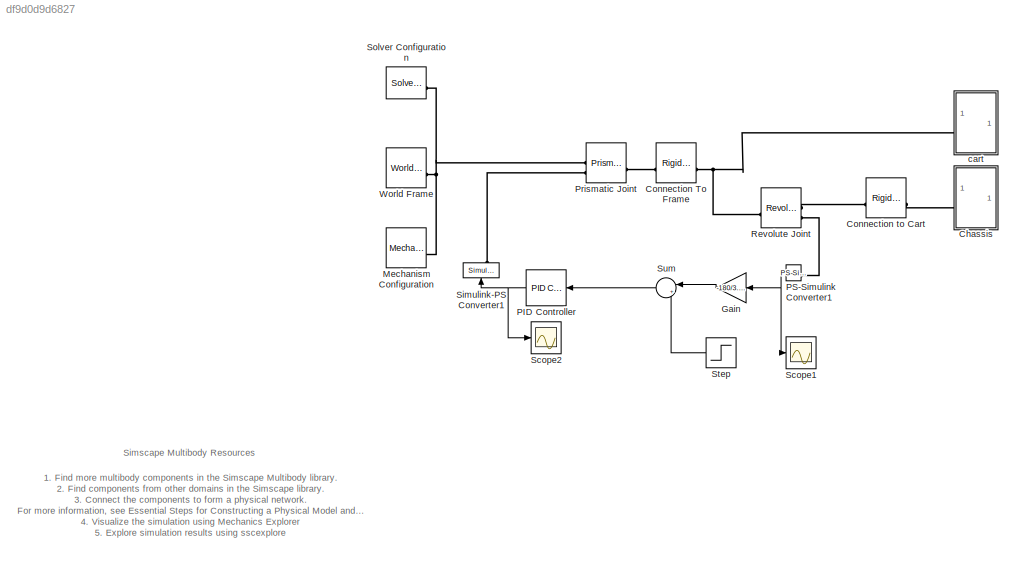
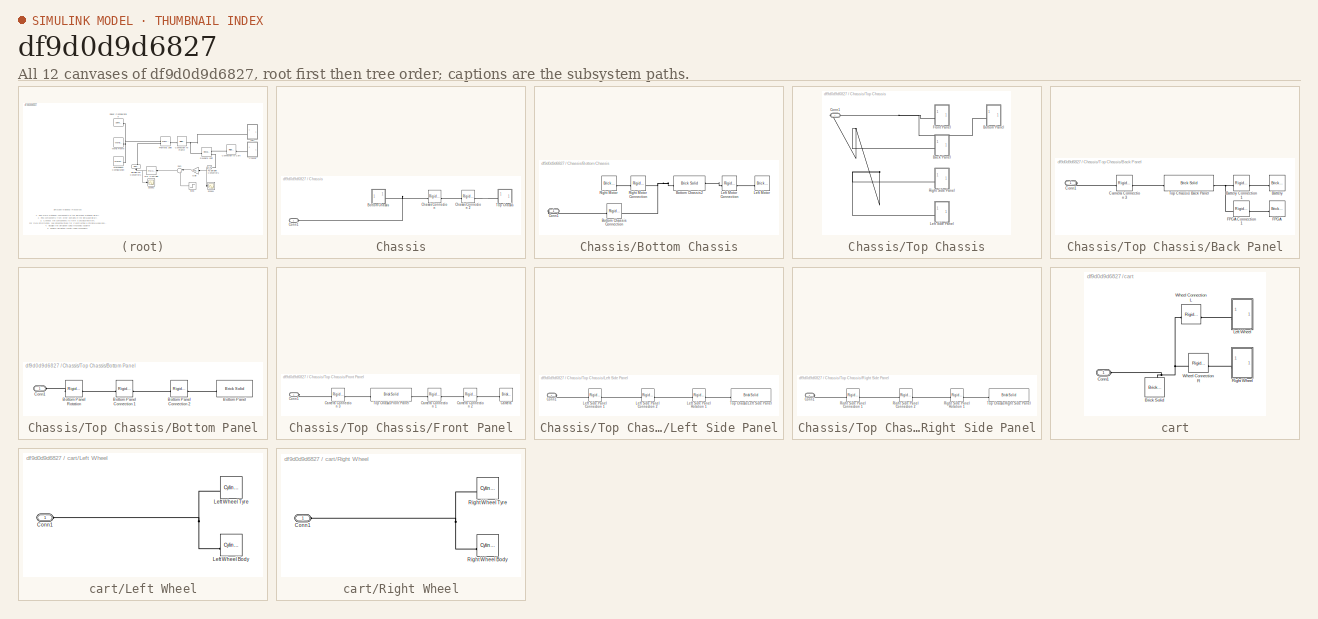
[diagram: thumbnail index - all 12 canvases of the model, root first then tree order]
MODEL slx_df9d0d9d6827
KIND model
CONFIG AbsTol = 1e-3
CONFIG EnableMultiTasking = on
CONFIG FixedStep = auto
CONFIG MaxStep = auto
CONFIG MinStep = auto
CONFIG RelTol = 1e-3
CONFIG SampleTimeConstraint = Unconstrained
CONFIG SolverName = VariableStepAuto
CONFIG StartTime = 0.0
CONFIG StopTime = 10.0
BLOCK [SubSystem] Chassis
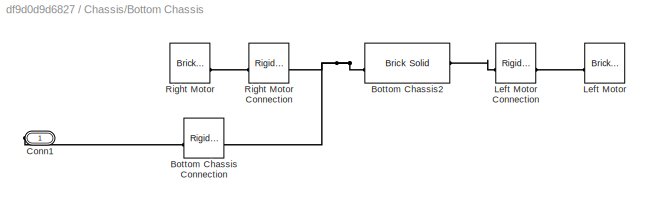
BLOCK [SubSystem] Chassis/Bottom Chassis
BLOCK [Reference] Chassis/Bottom Chassis/Bottom Chassis Connection  REF=sm_lib/Frames and
Transforms/Rigid
Transform
  SourceBlock = sm_lib/Frames and\nTransforms/Rigid\nTransform
  SourceType = Rigid\nTransform
BLOCK [Reference] Chassis/Bottom Chassis/Bottom Chassis2  REF=sm_lib/Body Elements/Brick Solid
  NameLocation = top
  SourceBlock = sm_lib/Body Elements/Brick Solid
  SourceType = Brick Solid
BLOCK [PMIOPort] Chassis/Bottom Chassis/Conn1
  NameLocation = top
  Side = Right
BLOCK [Reference] Chassis/Bottom Chassis/Left Motor  REF=sm_lib/Body Elements/Brick Solid
  SourceBlock = sm_lib/Body Elements/Brick Solid
  SourceType = Brick Solid
BLOCK [Reference] Chassis/Bottom Chassis/Left Motor Connection  REF=sm_lib/Frames and
Transforms/Rigid
Transform
  SourceBlock = sm_lib/Frames and\nTransforms/Rigid\nTransform
  SourceType = Rigid\nTransform
BLOCK [Reference] Chassis/Bottom Chassis/Right Motor  REF=sm_lib/Body Elements/Brick Solid
  NameLocation = top
  SourceBlock = sm_lib/Body Elements/Brick Solid
  SourceType = Brick Solid
BLOCK [Reference] Chassis/Bottom Chassis/Right Motor Connection  REF=sm_lib/Frames and
Transforms/Rigid
Transform
  SourceBlock = sm_lib/Frames and\nTransforms/Rigid\nTransform
  SourceType = Rigid\nTransform
BLOCK [Reference] Chassis/Chassis Connection  REF=sm_lib/Frames and
Transforms/Rigid
Transform
  SourceBlock = sm_lib/Frames and\nTransforms/Rigid\nTransform
  SourceType = Rigid\nTransform
BLOCK [Reference] Chassis/Chassis Connection 2  REF=sm_lib/Frames and
Transforms/Rigid
Transform
  SourceBlock = sm_lib/Frames and\nTransforms/Rigid\nTransform
  SourceType = Rigid\nTransform
BLOCK [PMIOPort] Chassis/Conn1
  Side = Left
BLOCK [SubSystem] Chassis/Top Chassis
  NameLocation = top
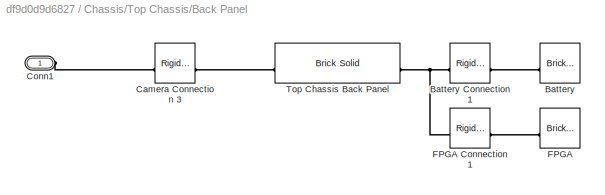
BLOCK [SubSystem] Chassis/Top Chassis/Back Panel
BLOCK [Reference] Chassis/Top Chassis/Back Panel/Battery  REF=sm_lib/Body Elements/Brick Solid
  NameLocation = top
  SourceBlock = sm_lib/Body Elements/Brick Solid
  SourceType = Brick Solid
BLOCK [Reference] Chassis/Top Chassis/Back Panel/Battery Connection 1  REF=sm_lib/Frames and
Transforms/Rigid
Transform
  SourceBlock = sm_lib/Frames and\nTransforms/Rigid\nTransform
  SourceType = Rigid\nTransform
BLOCK [Reference] Chassis/Top Chassis/Back Panel/Camera Connection 3  REF=sm_lib/Frames and
Transforms/Rigid
Transform
  SourceBlock = sm_lib/Frames and\nTransforms/Rigid\nTransform
  SourceType = Rigid\nTransform
BLOCK [PMIOPort] Chassis/Top Chassis/Back Panel/Conn1
  Side = Left
BLOCK [Reference] Chassis/Top Chassis/Back Panel/FPGA  REF=sm_lib/Body Elements/Brick Solid
  NameLocation = top
  SourceBlock = sm_lib/Body Elements/Brick Solid
  SourceType = Brick Solid
BLOCK [Reference] Chassis/Top Chassis/Back Panel/FPGA Connection 1  REF=sm_lib/Frames and
Transforms/Rigid
Transform
  SourceBlock = sm_lib/Frames and\nTransforms/Rigid\nTransform
  SourceType = Rigid\nTransform
BLOCK [Reference] Chassis/Top Chassis/Back Panel/Top Chassis Back Panel  REF=sm_lib/Body Elements/Brick Solid
  SourceBlock = sm_lib/Body Elements/Brick Solid
  SourceType = Brick Solid
BLOCK [SubSystem] Chassis/Top Chassis/Bottom Panel
BLOCK [Reference] Chassis/Top Chassis/Bottom Panel/Bottom Panel  REF=sm_lib/Body Elements/Brick Solid
  NameLocation = top
  SourceBlock = sm_lib/Body Elements/Brick Solid
  SourceType = Brick Solid
BLOCK [Reference] Chassis/Top Chassis/Bottom Panel/Bottom Panel Connection 1  REF=sm_lib/Frames and
Transforms/Rigid
Transform
  SourceBlock = sm_lib/Frames and\nTransforms/Rigid\nTransform
  SourceType = Rigid\nTransform
BLOCK [Reference] Chassis/Top Chassis/Bottom Panel/Bottom Panel Connection 2  REF=sm_lib/Frames and
Transforms/Rigid
Transform
  SourceBlock = sm_lib/Frames and\nTransforms/Rigid\nTransform
  SourceType = Rigid\nTransform
BLOCK [Reference] Chassis/Top Chassis/Bottom Panel/Bottom Panel Rotation  REF=sm_lib/Frames and
Transforms/Rigid
Transform
  SourceBlock = sm_lib/Frames and\nTransforms/Rigid\nTransform
  SourceType = Rigid\nTransform
BLOCK [PMIOPort] Chassis/Top Chassis/Bottom Panel/Conn1
  Side = Left
BLOCK [PMIOPort] Chassis/Top Chassis/Conn1
  Side = Right
BLOCK [SubSystem] Chassis/Top Chassis/Front Panel
BLOCK [Reference] Chassis/Top Chassis/Front Panel/Camera  REF=sm_lib/Body Elements/Brick Solid
  NameLocation = top
  SourceBlock = sm_lib/Body Elements/Brick Solid
  SourceType = Brick Solid
BLOCK [Reference] Chassis/Top Chassis/Front Panel/Camera Connection 1  REF=sm_lib/Frames and
Transforms/Rigid
Transform
  SourceBlock = sm_lib/Frames and\nTransforms/Rigid\nTransform
  SourceType = Rigid\nTransform
BLOCK [Reference] Chassis/Top Chassis/Front Panel/Camera Connection 2  REF=sm_lib/Frames and
Transforms/Rigid
Transform
  SourceBlock = sm_lib/Frames and\nTransforms/Rigid\nTransform
  SourceType = Rigid\nTransform
BLOCK [Reference] Chassis/Top Chassis/Front Panel/Camera Connection 3  REF=sm_lib/Frames and
Transforms/Rigid
Transform
  SourceBlock = sm_lib/Frames and\nTransforms/Rigid\nTransform
  SourceType = Rigid\nTransform
BLOCK [PMIOPort] Chassis/Top Chassis/Front Panel/Conn1
  Side = Left
BLOCK [Reference] Chassis/Top Chassis/Front Panel/Top Chassis Front Panel  REF=sm_lib/Body Elements/Brick Solid
  SourceBlock = sm_lib/Body Elements/Brick Solid
  SourceType = Brick Solid
BLOCK [SubSystem] Chassis/Top Chassis/Left Side Panel
BLOCK [PMIOPort] Chassis/Top Chassis/Left Side Panel/Conn1
  Side = Left
BLOCK [Reference] Chassis/Top Chassis/Left Side Panel/Left Side Panel Connection 1  REF=sm_lib/Frames and
Transforms/Rigid
Transform
  SourceBlock = sm_lib/Frames and\nTransforms/Rigid\nTransform
  SourceType = Rigid\nTransform
BLOCK [Reference] Chassis/Top Chassis/Left Side Panel/Left Side Panel Connection 2  REF=sm_lib/Frames and
Transforms/Rigid
Transform
  SourceBlock = sm_lib/Frames and\nTransforms/Rigid\nTransform
  SourceType = Rigid\nTransform
BLOCK [Reference] Chassis/Top Chassis/Left Side Panel/Left Side Panel Rotation 1  REF=sm_lib/Frames and
Transforms/Rigid
Transform
  SourceBlock = sm_lib/Frames and\nTransforms/Rigid\nTransform
  SourceType = Rigid\nTransform
BLOCK [Reference] Chassis/Top Chassis/Left Side Panel/Top Chassis Left Side Panel  REF=sm_lib/Body Elements/Brick Solid
  SourceBlock = sm_lib/Body Elements/Brick Solid
  SourceType = Brick Solid
BLOCK [SubSystem] Chassis/Top Chassis/Right Side Panel
BLOCK [PMIOPort] Chassis/Top Chassis/Right Side Panel/Conn1
  Side = Left
BLOCK [Reference] Chassis/Top Chassis/Right Side Panel/Right Side Panel Connection 1  REF=sm_lib/Frames and
Transforms/Rigid
Transform
  SourceBlock = sm_lib/Frames and\nTransforms/Rigid\nTransform
  SourceType = Rigid\nTransform
BLOCK [Reference] Chassis/Top Chassis/Right Side Panel/Right Side Panel Connection 2  REF=sm_lib/Frames and
Transforms/Rigid
Transform
  SourceBlock = sm_lib/Frames and\nTransforms/Rigid\nTransform
  SourceType = Rigid\nTransform
BLOCK [Reference] Chassis/Top Chassis/Right Side Panel/Right Side Panel Rotation 1  REF=sm_lib/Frames and
Transforms/Rigid
Transform
  SourceBlock = sm_lib/Frames and\nTransforms/Rigid\nTransform
  SourceType = Rigid\nTransform
BLOCK [Reference] Chassis/Top Chassis/Right Side Panel/Top Chassis Right Side Panel  REF=sm_lib/Body Elements/Brick Solid
  SourceBlock = sm_lib/Body Elements/Brick Solid
  SourceType = Brick Solid
BLOCK [Reference] Connection To Frame  REF=sm_lib/Frames and
Transforms/Rigid
Transform
  SourceBlock = sm_lib/Frames and\nTransforms/Rigid\nTransform
  SourceType = Rigid\nTransform
BLOCK [Reference] Connection to Cart  REF=sm_lib/Frames and
Transforms/Rigid
Transform
  SourceBlock = sm_lib/Frames and\nTransforms/Rigid\nTransform
  SourceType = Rigid\nTransform
BLOCK [Gain] Gain
  Gain = -180/3.14
  NameLocation = top
BLOCK [Reference] Mechanism Configuration  REF=sm_lib/Utilities/Mechanism
Configuration
  SourceBlock = sm_lib/Utilities/Mechanism\nConfiguration
  SourceType = Mechanism\nConfiguration
BLOCK [Reference] PID Controller  REF=slpidlib/PID Controller
  LibrarySourceBlock = simulink/Continuous/PID Controller
  NameLocation = top
  SourceBlock = slpidlib/PID Controller
  SourceType = PID 1dof
BLOCK [Reference] PS-Simulink Converter1  REF=nesl_utility/PS-Simulink
Converter
  NameLocation = top
  SourceBlock = nesl_utility/PS-Simulink\nConverter
  SourceType = PS-Simulink\nConverter
BLOCK [Reference] Prismatic Joint  REF=sm_lib/Joints/Prismatic
Joint
  SourceBlock = sm_lib/Joints/Prismatic\nJoint
  SourceType = Prismatic\nJoint
BLOCK [Reference] Revolute Joint  REF=sm_lib/Joints/Revolute Joint
  SourceBlock = sm_lib/Joints/Revolute Joint
  SourceType = Revolute Joint
BLOCK [Scope] Scope1
  Floating = off
  NumInputPorts = 1
  ScopeSpecificationString = Simulink.scopes.TimeScopeBlockCfg('CurrentConfiguration', extmgr.ConfigurationSet(extmgr.Configuration('Core','General UI',true),extmgr.Configuration('Core','Source UI',true),extmgr.Configuration('Sources','WiredSimulink',true,'DataLoggingVariableName','ScopeData1'),extmgr.Configuration('Visuals','Time Domain',true),extmgr.Configuration('Tools','Plot Navigation',true),extmgr.Configuration('Tools',...<+58ch>
BLOCK [Scope] Scope2
  Floating = off
  NumInputPorts = 1
  ScopeSpecificationString = Simulink.scopes.TimeScopeBlockCfg('CurrentConfiguration', extmgr.ConfigurationSet(extmgr.Configuration('Core','General UI',true),extmgr.Configuration('Core','Source UI',true),extmgr.Configuration('Sources','WiredSimulink',true,'DataLoggingVariableName','ScopeData2'),extmgr.Configuration('Visuals','Time Domain',true),extmgr.Configuration('Tools','Plot Navigation',true),extmgr.Configuration('Tools',...<+58ch>
BLOCK [Reference] Simulink-PS Converter1  REF=nesl_utility/Simulink-PS
Converter
  NameLocation = right
  SourceBlock = nesl_utility/Simulink-PS\nConverter
  SourceType = Simulink-PS\nConverter
BLOCK [Reference] Solver Configuration  REF=nesl_utility/Solver
Configuration
  SourceBlock = nesl_utility/Solver\nConfiguration
  SourceType = Solver\nConfiguration
BLOCK [Step] Step
  After = 0
  Before = 10
  NameLocation = top
  SampleTime = 0
  Time = 0.01
BLOCK [Sum] Sum
  Inputs = |+-
  NameLocation = top
BLOCK [Reference] World Frame  REF=sm_lib/Frames and
Transforms/World Frame
  SourceBlock = sm_lib/Frames and\nTransforms/World Frame
  SourceType = World Frame
BLOCK [SubSystem] cart
BLOCK [Reference] cart/Brick Solid  REF=sm_lib/Body Elements/Brick Solid
  NameLocation = right
  SourceBlock = sm_lib/Body Elements/Brick Solid
  SourceType = Brick Solid
BLOCK [PMIOPort] cart/Conn1
  Side = Left
BLOCK [SubSystem] cart/Left Wheel
BLOCK [PMIOPort] cart/Left Wheel/Conn1
  Side = Left
BLOCK [Reference] cart/Left Wheel/Left Wheel Body  REF=sm_lib/Body Elements/Cylindrical Solid
  SourceBlock = sm_lib/Body Elements/Cylindrical Solid
  SourceType = Cylindrical Solid
BLOCK [Reference] cart/Left Wheel/Left Wheel Tyre  REF=sm_lib/Body Elements/Cylindrical Solid
  SourceBlock = sm_lib/Body Elements/Cylindrical Solid
  SourceType = Cylindrical Solid
BLOCK [SubSystem] cart/Right Wheel
BLOCK [PMIOPort] cart/Right Wheel/Conn1
  Side = Left
BLOCK [Reference] cart/Right Wheel/Right Wheel Body  REF=sm_lib/Body Elements/Cylindrical Solid
  SourceBlock = sm_lib/Body Elements/Cylindrical Solid
  SourceType = Cylindrical Solid
BLOCK [Reference] cart/Right Wheel/Right Wheel Tyre  REF=sm_lib/Body Elements/Cylindrical Solid
  SourceBlock = sm_lib/Body Elements/Cylindrical Solid
  SourceType = Cylindrical Solid
BLOCK [Reference] cart/Wheel Connection L  REF=sm_lib/Frames and
Transforms/Rigid
Transform
  SourceBlock = sm_lib/Frames and\nTransforms/Rigid\nTransform
  SourceType = Rigid\nTransform
BLOCK [Reference] cart/Wheel Connection R  REF=sm_lib/Frames and
Transforms/Rigid
Transform
  SourceBlock = sm_lib/Frames and\nTransforms/Rigid\nTransform
  SourceType = Rigid\nTransform
ANNOTATION (root): 1. Find more multibody components in the Simscape Multibody library . 2. Find components from other domains in the Simscape library . 3. Connect the components to form a physical network. For more information, see Essential Steps for Constructing a Physical Model and Creating a Multibody Model . 4. Visualize the simulation using Mechanics Explorer 5. Explore simulation results using sscexplore
ANNOTATION (root): Simscape Multibody Resources
LINE Gain:1 -> Sum:1
NET PID Controller:1 -> Scope2:1, Simulink-PS Converter1:1
NET PS-Simulink Converter1:1 -> Gain:1, Scope1:1
LINE Step:1 -> Sum:2
LINE Sum:1 -> PID Controller:1
PLINE Chassis/Bottom Chassis/Bottom Chassis Connection:LConn1 -- Chassis/Bottom Chassis/Conn1:RConn1
PNET net1: Chassis/Bottom Chassis/Bottom Chassis Connection:RConn1 -- Chassis/Bottom Chassis/Bottom Chassis2:RConn1 -- Chassis/Bottom Chassis/Right Motor Connection:RConn1
PLINE Chassis/Bottom Chassis/Bottom Chassis2:LConn1 -- Chassis/Bottom Chassis/Left Motor Connection:LConn1
PLINE Chassis/Bottom Chassis/Left Motor Connection:RConn1 -- Chassis/Bottom Chassis/Left Motor:LConn1
PLINE Chassis/Bottom Chassis/Right Motor Connection:LConn1 -- Chassis/Bottom Chassis/Right Motor:LConn1
PNET net2: Chassis/Bottom Chassis:RConn1 -- Chassis/Chassis Connection:LConn1 -- Chassis/Conn1:RConn1
PLINE Chassis/Chassis Connection 2:LConn1 -- Chassis/Chassis Connection:RConn1
PLINE Chassis/Chassis Connection 2:RConn1 -- Chassis/Top Chassis:RConn1
PNET net3: Chassis/Top Chassis/Back Panel/Battery Connection 1:LConn1 -- Chassis/Top Chassis/Back Panel/FPGA Connection 1:LConn1 -- Chassis/Top Chassis/Back Panel/Top Chassis Back Panel:LConn1
PLINE Chassis/Top Chassis/Back Panel/Battery Connection 1:RConn1 -- Chassis/Top Chassis/Back Panel/Battery:RConn1
PLINE Chassis/Top Chassis/Back Panel/Camera Connection 3:LConn1 -- Chassis/Top Chassis/Back Panel/Conn1:RConn1
PLINE Chassis/Top Chassis/Back Panel/Camera Connection 3:RConn1 -- Chassis/Top Chassis/Back Panel/Top Chassis Back Panel:RConn1
PLINE Chassis/Top Chassis/Back Panel/FPGA Connection 1:RConn1 -- Chassis/Top Chassis/Back Panel/FPGA:RConn1
PNET net4: Chassis/Top Chassis/Back Panel:LConn1 -- Chassis/Top Chassis/Bottom Panel:LConn1 -- Chassis/Top Chassis/Conn1:RConn1 -- Chassis/Top Chassis/Front Panel:LConn1 -- Chassis/Top Chassis/Left Side Panel:LConn1 -- Chassis/Top Chassis/Right Side Panel:LConn1
PLINE Chassis/Top Chassis/Bottom Panel/Bottom Panel Connection 1:LConn1 -- Chassis/Top Chassis/Bottom Panel/Bottom Panel Rotation:RConn1
PLINE Chassis/Top Chassis/Bottom Panel/Bottom Panel Connection 1:RConn1 -- Chassis/Top Chassis/Bottom Panel/Bottom Panel Connection 2:LConn1
PLINE Chassis/Top Chassis/Bottom Panel/Bottom Panel Connection 2:RConn1 -- Chassis/Top Chassis/Bottom Panel/Bottom Panel:RConn1
PLINE Chassis/Top Chassis/Bottom Panel/Bottom Panel Rotation:LConn1 -- Chassis/Top Chassis/Bottom Panel/Conn1:RConn1
PLINE Chassis/Top Chassis/Front Panel/Camera Connection 1:LConn1 -- Chassis/Top Chassis/Front Panel/Top Chassis Front Panel:LConn1
PLINE Chassis/Top Chassis/Front Panel/Camera Connection 1:RConn1 -- Chassis/Top Chassis/Front Panel/Camera Connection 2:LConn1
PLINE Chassis/Top Chassis/Front Panel/Camera Connection 2:RConn1 -- Chassis/Top Chassis/Front Panel/Camera:RConn1
PLINE Chassis/Top Chassis/Front Panel/Camera Connection 3:LConn1 -- Chassis/Top Chassis/Front Panel/Conn1:RConn1
PLINE Chassis/Top Chassis/Front Panel/Camera Connection 3:RConn1 -- Chassis/Top Chassis/Front Panel/Top Chassis Front Panel:RConn1
PLINE Chassis/Top Chassis/Left Side Panel/Conn1:RConn1 -- Chassis/Top Chassis/Left Side Panel/Left Side Panel Connection 1:LConn1
PLINE Chassis/Top Chassis/Left Side Panel/Left Side Panel Connection 1:RConn1 -- Chassis/Top Chassis/Left Side Panel/Left Side Panel Connection 2:LConn1
PLINE Chassis/Top Chassis/Left Side Panel/Left Side Panel Connection 2:RConn1 -- Chassis/Top Chassis/Left Side Panel/Left Side Panel Rotation 1:LConn1
PLINE Chassis/Top Chassis/Left Side Panel/Left Side Panel Rotation 1:RConn1 -- Chassis/Top Chassis/Left Side Panel/Top Chassis Left Side Panel:RConn1
PLINE Chassis/Top Chassis/Right Side Panel/Conn1:RConn1 -- Chassis/Top Chassis/Right Side Panel/Right Side Panel Connection 1:LConn1
PLINE Chassis/Top Chassis/Right Side Panel/Right Side Panel Connection 1:RConn1 -- Chassis/Top Chassis/Right Side Panel/Right Side Panel Connection 2:LConn1
PLINE Chassis/Top Chassis/Right Side Panel/Right Side Panel Connection 2:RConn1 -- Chassis/Top Chassis/Right Side Panel/Right Side Panel Rotation 1:LConn1
PLINE Chassis/Top Chassis/Right Side Panel/Right Side Panel Rotation 1:RConn1 -- Chassis/Top Chassis/Right Side Panel/Top Chassis Right Side Panel:RConn1
PLINE Chassis:LConn1 -- Connection to Cart:RConn1
PLINE Connection To Frame:LConn1 -- Prismatic Joint:RConn1
PNET net5: Connection To Frame:RConn1 -- Revolute Joint:LConn1 -- cart:LConn1
PLINE Connection to Cart:LConn1 -- Revolute Joint:RConn1
PNET net6: Mechanism Configuration:RConn1 -- Prismatic Joint:LConn1 -- Solver Configuration:RConn1 -- World Frame:RConn1
PLINE PS-Simulink Converter1:LConn1 -- Revolute Joint:RConn2
PLINE Prismatic Joint:LConn2 -- Simulink-PS Converter1:RConn1
PNET net7: cart/Brick Solid:RConn1 -- cart/Conn1:RConn1 -- cart/Wheel Connection L:LConn1 -- cart/Wheel Connection R:LConn1
PNET net8: cart/Left Wheel/Conn1:RConn1 -- cart/Left Wheel/Left Wheel Body:RConn1 -- cart/Left Wheel/Left Wheel Tyre:RConn1
PLINE cart/Left Wheel:LConn1 -- cart/Wheel Connection L:RConn1
PNET net9: cart/Right Wheel/Conn1:RConn1 -- cart/Right Wheel/Right Wheel Body:RConn1 -- cart/Right Wheel/Right Wheel Tyre:RConn1
PLINE cart/Right Wheel:LConn1 -- cart/Wheel Connection R:RConn1
note: NET lines group one-source signal fan-out (src -> all destinations, sorted); 1:1 wires keep LINE; PNET lines group multi-terminal physical nets as a canonical sorted terminal list (undirected conserving connections); 2-terminal nets keep the pairwise PLINE form
